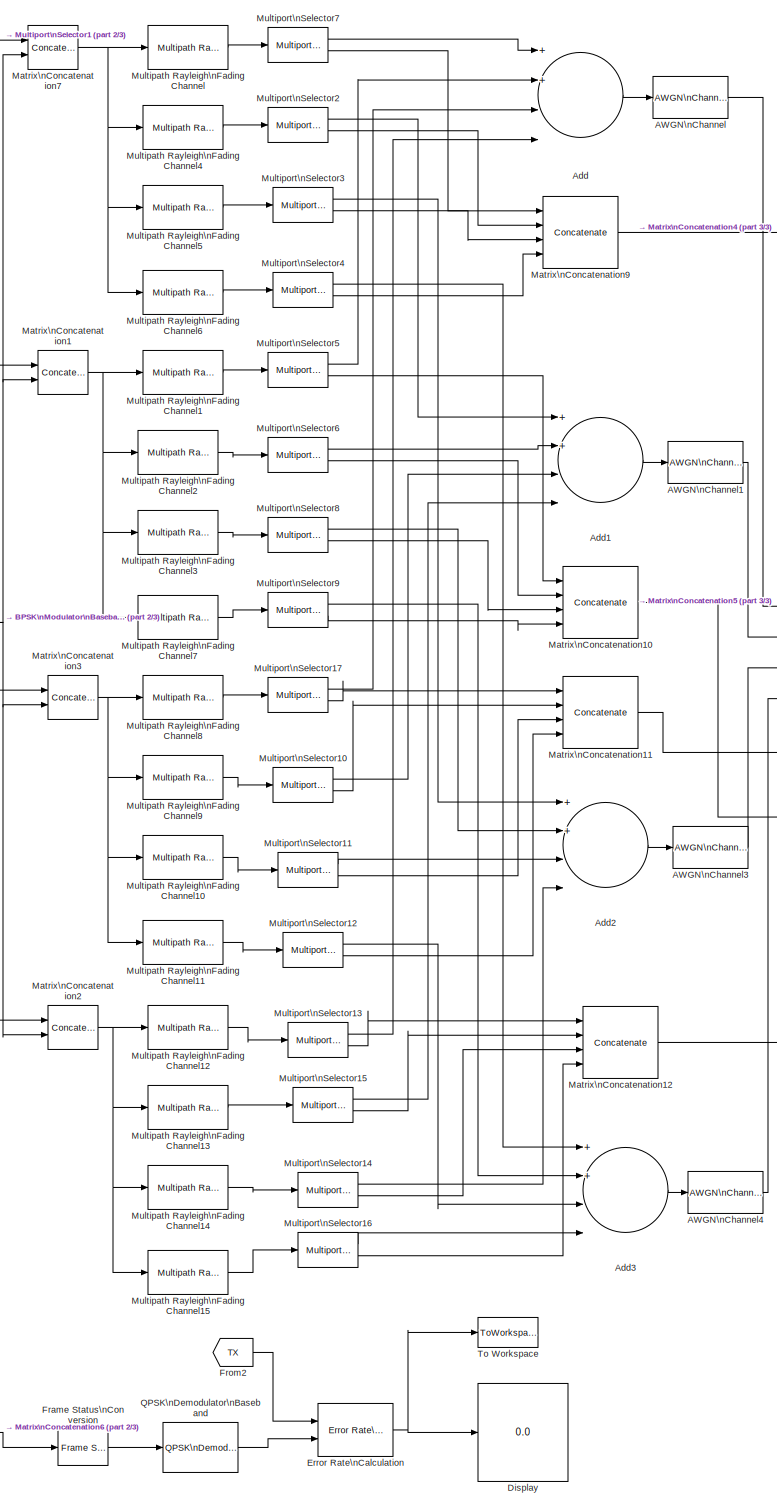
[diagram: root canvas - part 1/3, center side, full height]
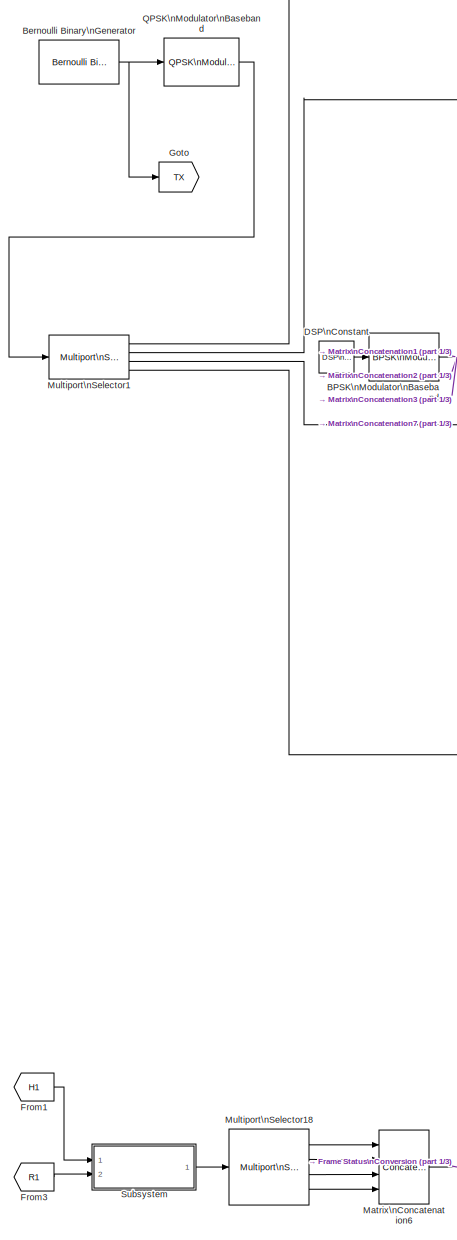
[diagram: root canvas - part 2/3, left side, full height]
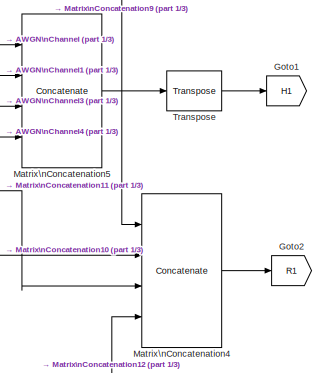
[diagram: root canvas - part 3/3, middle right region]
MODEL mimo
KIND model
BLOCK [Reference] AWGN\nChannel  REF=commchan3/AWGN\nChannel
  EbNodB = 20
  EsNodB = 10
  FunctionWithSeparateData = off
  Ports = [1, 1]
  Ps = 1
  RTWMemSecDataConstants = Inherit from model
  RTWMemSecDataInternal = Inherit from model
  RTWMemSecDataParameters = Inherit from model
  RTWMemSecFuncExecute = Inherit from model
  RTWMemSecFuncInitTerm = Inherit from model
  SNRdB = 0
  ShowPortLabels = FromPortIcon
  SourceBlock = commchan3/AWGN\nChannel
  SourceType = AWGN Channel
  SystemSampleTime = -1
  Tsym = 1e-3/3
  bitsPerSym = 1
  noiseMode = Signal to noise ratio  (SNR)
  seed = 67
  variance = 1
BLOCK [Reference] AWGN\nChannel1  REF=commchan3/AWGN\nChannel
  EbNodB = 20
  EsNodB = 10
  FunctionWithSeparateData = off
  Ports = [1, 1]
  Ps = 1
  RTWMemSecDataConstants = Inherit from model
  RTWMemSecDataInternal = Inherit from model
  RTWMemSecDataParameters = Inherit from model
  RTWMemSecFuncExecute = Inherit from model
  RTWMemSecFuncInitTerm = Inherit from model
  SNRdB = 0
  ShowPortLabels = FromPortIcon
  SourceBlock = commchan3/AWGN\nChannel
  SourceType = AWGN Channel
  SystemSampleTime = -1
  Tsym = 1e-3/3
  bitsPerSym = 1
  noiseMode = Signal to noise ratio  (SNR)
  seed = 68
  variance = 1
BLOCK [Reference] AWGN\nChannel3  REF=commchan3/AWGN\nChannel
  EbNodB = 20
  EsNodB = 10
  FunctionWithSeparateData = off
  Ports = [1, 1]
  Ps = 1
  RTWMemSecDataConstants = Inherit from model
  RTWMemSecDataInternal = Inherit from model
  RTWMemSecDataParameters = Inherit from model
  RTWMemSecFuncExecute = Inherit from model
  RTWMemSecFuncInitTerm = Inherit from model
  SNRdB = 0
  ShowPortLabels = FromPortIcon
  SourceBlock = commchan3/AWGN\nChannel
  SourceType = AWGN Channel
  SystemSampleTime = -1
  Tsym = 1e-3/3
  bitsPerSym = 1
  noiseMode = Signal to noise ratio  (SNR)
  seed = 69
  variance = 1
BLOCK [Reference] AWGN\nChannel4  REF=commchan3/AWGN\nChannel
  EbNodB = 20
  EsNodB = 10
  FunctionWithSeparateData = off
  Ports = [1, 1]
  Ps = 1
  RTWMemSecDataConstants = Inherit from model
  RTWMemSecDataInternal = Inherit from model
  RTWMemSecDataParameters = Inherit from model
  RTWMemSecFuncExecute = Inherit from model
  RTWMemSecFuncInitTerm = Inherit from model
  SNRdB = 0
  ShowPortLabels = FromPortIcon
  SourceBlock = commchan3/AWGN\nChannel
  SourceType = AWGN Channel
  SystemSampleTime = -1
  Tsym = 1e-3/3
  bitsPerSym = 1
  noiseMode = Signal to noise ratio  (SNR)
  seed = 70
  variance = 1
BLOCK [Sum] Add
  InputSameDT = off
  Inputs = 4
  OutDataTypeMode = Inherit via internal rule
  OutScaling = 2^-10
  Ports = [4, 1]
  SaturateOnIntegerOverflow = off
BLOCK [Sum] Add1
  InputSameDT = off
  Inputs = 4
  OutDataTypeMode = Inherit via internal rule
  OutScaling = 2^-10
  Ports = [4, 1]
  SaturateOnIntegerOverflow = off
BLOCK [Sum] Add2
  InputSameDT = off
  Inputs = 4
  OutDataTypeMode = Inherit via internal rule
  OutScaling = 2^-10
  Ports = [4, 1]
  SaturateOnIntegerOverflow = off
BLOCK [Sum] Add3
  InputSameDT = off
  Inputs = 4
  OutDataTypeMode = Inherit via internal rule
  OutScaling = 2^-10
  Ports = [4, 1]
  SaturateOnIntegerOverflow = off
BLOCK [Reference] BPSK\nModulator\nBaseband  REF=commdigbbndpm2/BPSK\nModulator\nBaseband
  FunctionWithSeparateData = off
  Ph = 0
  Ports = [1, 1]
  RTWMemSecDataConstants = Inherit from model
  RTWMemSecDataInternal = Inherit from model
  RTWMemSecDataParameters = Inherit from model
  RTWMemSecFuncExecute = Inherit from model
  RTWMemSecFuncInitTerm = Inherit from model
  ShowPortLabels = FromPortIcon
  SourceBlock = commdigbbndpm2/BPSK\nModulator\nBaseband
  SourceType = BPSK Modulator Baseband
  SystemSampleTime = -1
  numSamp = 1
BLOCK [Reference] Bernoulli Binary\nGenerator  REF=commrandsrc2/Bernoulli Binary\nGenerator
  DialogController = commDDGCreate
  DialogControllerArgs = DataTag0
  FunctionWithSeparateData = off
  P = 0.5
  Ports = [0, 1]
  RTWMemSecDataConstants = Inherit from model
  RTWMemSecDataInternal = Inherit from model
  RTWMemSecDataParameters = Inherit from model
  RTWMemSecFuncExecute = Inherit from model
  RTWMemSecFuncInitTerm = Inherit from model
  ShowPortLabels = FromPortIcon
  SourceBlock = commrandsrc2/Bernoulli Binary\nGenerator
  SourceType = Bernoulli Binary Generator
  SystemSampleTime = -1
  Ts = 1e-6/16/2
  frameBased = on
  orient = off
  outDataType = double
  sampPerFrame = 32
  seed = 61
BLOCK [Reference] DSP\nConstant  REF=dspsrcs4/DSP\nConstant
  FramebasedOutput = -inf
  FunctionWithSeparateData = off
  InterpretAs1D = -inf
  Ports = [0, 1]
  RTWMemSecDataConstants = Inherit from model
  RTWMemSecDataInternal = Inherit from model
  RTWMemSecDataParameters = Inherit from model
  RTWMemSecFuncExecute = Inherit from model
  RTWMemSecFuncInitTerm = Inherit from model
  SampleMode = Discrete
  ShowPortLabels = FromPortIcon
  SourceBlock = dspsrcs4/DSP\nConstant
  SourceType = DSP Constant
  SystemSampleTime = -1
  Ts = -inf
  Value = 0
  additionalParams = off
  allowOverrides = on
  continuousOutput = Sample-based
  dataType = Inherit from 'Constant value'
  discreteOutput = Frame-based
  fracBitsMode = Best precision
  framePeriod = 1e-6
  isSigned = on
  numFracBits = 15
  sampTime = 1e-3/64
  udDataType = sfix(16)
  wordLen = 16
BLOCK [Display] Display
  Decimation = 1
  Lockdown = off
  Ports = [1]
BLOCK [Reference] Error Rate\nCalculation  REF=commsink2/Error Rate\nCalculation
  N = 0
  PMode = Port
  Ports = [2, 1]
  RsMode2 = off
  SourceBlock = commsink2/Error Rate\nCalculation
  SourceType = Error Rate Calculation
  WsName = ErrorVec
  cp_mode = Entire frame
  maxBits = 1e6
  numErr = 1e6
  st_delay = 0
  stop = on
  subframe = []
BLOCK [Reference] Frame Status\nConversion  REF=dspobslib/Frame Status\nConversion
  FunctionWithSeparateData = off
  Ports = [1, 1]
  RTWMemSecDataConstants = Inherit from model
  RTWMemSecDataInternal = Inherit from model
  RTWMemSecDataParameters = Inherit from model
  RTWMemSecFuncExecute = Inherit from model
  RTWMemSecFuncInitTerm = Inherit from model
  ShowPortLabels = none
  SourceBlock = dspobslib/Frame Status\nConversion
  SourceType = Frame Status Conversion
  SystemSampleTime = -1
  growRefPort = off
  outframe = Frame-based
BLOCK [From] From1
  CloseFcn = tagdialog Close
  GotoTag = H1
BLOCK [From] From2
  CloseFcn = tagdialog Close
  GotoTag = TX
BLOCK [From] From3
  CloseFcn = tagdialog Close
  GotoTag = R1
BLOCK [Goto] Goto
  GotoTag = TX
  TagVisibility = local
BLOCK [Goto] Goto1
  GotoTag = H1
  TagVisibility = local
BLOCK [Goto] Goto2
  GotoTag = R1
  TagVisibility = local
BLOCK [Concatenate] Matrix\nConcatenation1
  Mode = Multidimensional array
  Ports = [2, 1]
BLOCK [Concatenate] Matrix\nConcatenation10
  Mode = Multidimensional array
  NumInputs = 4
  Ports = [4, 1]
BLOCK [Concatenate] Matrix\nConcatenation11
  Mode = Multidimensional array
  NumInputs = 4
  Ports = [4, 1]
BLOCK [Concatenate] Matrix\nConcatenation12
  Mode = Multidimensional array
  NumInputs = 4
  Ports = [4, 1]
BLOCK [Concatenate] Matrix\nConcatenation2
  Mode = Multidimensional array
  Ports = [2, 1]
BLOCK [Concatenate] Matrix\nConcatenation3
  Mode = Multidimensional array
  Ports = [2, 1]
BLOCK [Concatenate] Matrix\nConcatenation4
  ConcatenateDimension = 2
  Mode = Multidimensional array
  NumInputs = 4
  Ports = [4, 1]
BLOCK [Concatenate] Matrix\nConcatenation5
  ConcatenateDimension = 2
  Mode = Multidimensional array
  NumInputs = 4
  Ports = [4, 1]
BLOCK [Concatenate] Matrix\nConcatenation6
  Mode = Multidimensional array
  NumInputs = 4
  Ports = [4, 1]
BLOCK [Concatenate] Matrix\nConcatenation7
  Mode = Multidimensional array
  Ports = [2, 1]
BLOCK [Concatenate] Matrix\nConcatenation9
  Mode = Multidimensional array
  NumInputs = 4
  Ports = [4, 1]
BLOCK [Reference] Multipath Rayleigh\nFading Channel  REF=commchan2/Multipath Rayleigh\nFading Channel
  Fd = 100
  FunctionWithSeparateData = off
  Ports = [1, 1]
  RTWMemSecDataConstants = Inherit from model
  RTWMemSecDataInternal = Inherit from model
  RTWMemSecDataParameters = Inherit from model
  RTWMemSecFuncExecute = Inherit from model
  RTWMemSecFuncInitTerm = Inherit from model
  Seed = 71
  ShowPortLabels = FromPortIcon
  SourceBlock = commchan2/Multipath Rayleigh\nFading Channel
  SourceType = Multipath Rayleigh Fading Channel
  SystemSampleTime = -1
  delayVec = [0]
  gainVecdB = [0]
  normGain = on
  simTs = 1e-6/5
BLOCK [Reference] Multipath Rayleigh\nFading Channel1  REF=commchan2/Multipath Rayleigh\nFading Channel
  Fd = 100
  FunctionWithSeparateData = off
  Ports = [1, 1]
  RTWMemSecDataConstants = Inherit from model
  RTWMemSecDataInternal = Inherit from model
  RTWMemSecDataParameters = Inherit from model
  RTWMemSecFuncExecute = Inherit from model
  RTWMemSecFuncInitTerm = Inherit from model
  Seed = 75
  ShowPortLabels = FromPortIcon
  SourceBlock = commchan2/Multipath Rayleigh\nFading Channel
  SourceType = Multipath Rayleigh Fading Channel
  SystemSampleTime = -1
  delayVec = [0]
  gainVecdB = [0]
  normGain = on
  simTs = 1e-6/5
BLOCK [Reference] Multipath Rayleigh\nFading Channel10  REF=commchan2/Multipath Rayleigh\nFading Channel
  Fd = 100
  FunctionWithSeparateData = off
  Ports = [1, 1]
  RTWMemSecDataConstants = Inherit from model
  RTWMemSecDataInternal = Inherit from model
  RTWMemSecDataParameters = Inherit from model
  RTWMemSecFuncExecute = Inherit from model
  RTWMemSecFuncInitTerm = Inherit from model
  Seed = 81
  ShowPortLabels = FromPortIcon
  SourceBlock = commchan2/Multipath Rayleigh\nFading Channel
  SourceType = Multipath Rayleigh Fading Channel
  SystemSampleTime = -1
  delayVec = [0]
  gainVecdB = [0]
  normGain = on
  simTs = 1e-6/5
BLOCK [Reference] Multipath Rayleigh\nFading Channel11  REF=commchan2/Multipath Rayleigh\nFading Channel
  Fd = 100
  FunctionWithSeparateData = off
  Ports = [1, 1]
  RTWMemSecDataConstants = Inherit from model
  RTWMemSecDataInternal = Inherit from model
  RTWMemSecDataParameters = Inherit from model
  RTWMemSecFuncExecute = Inherit from model
  RTWMemSecFuncInitTerm = Inherit from model
  Seed = 82
  ShowPortLabels = FromPortIcon
  SourceBlock = commchan2/Multipath Rayleigh\nFading Channel
  SourceType = Multipath Rayleigh Fading Channel
  SystemSampleTime = -1
  delayVec = [0]
  gainVecdB = [0]
  normGain = on
  simTs = 1e-6/5
BLOCK [Reference] Multipath Rayleigh\nFading Channel12  REF=commchan2/Multipath Rayleigh\nFading Channel
  Fd = 100
  FunctionWithSeparateData = off
  Ports = [1, 1]
  RTWMemSecDataConstants = Inherit from model
  RTWMemSecDataInternal = Inherit from model
  RTWMemSecDataParameters = Inherit from model
  RTWMemSecFuncExecute = Inherit from model
  RTWMemSecFuncInitTerm = Inherit from model
  Seed = 83
  ShowPortLabels = FromPortIcon
  SourceBlock = commchan2/Multipath Rayleigh\nFading Channel
  SourceType = Multipath Rayleigh Fading Channel
  SystemSampleTime = -1
  delayVec = [0]
  gainVecdB = [0]
  normGain = on
  simTs = 1e-6/5
BLOCK [Reference] Multipath Rayleigh\nFading Channel13  REF=commchan2/Multipath Rayleigh\nFading Channel
  Fd = 100
  FunctionWithSeparateData = off
  Ports = [1, 1]
  RTWMemSecDataConstants = Inherit from model
  RTWMemSecDataInternal = Inherit from model
  RTWMemSecDataParameters = Inherit from model
  RTWMemSecFuncExecute = Inherit from model
  RTWMemSecFuncInitTerm = Inherit from model
  Seed = 84
  ShowPortLabels = FromPortIcon
  SourceBlock = commchan2/Multipath Rayleigh\nFading Channel
  SourceType = Multipath Rayleigh Fading Channel
  SystemSampleTime = -1
  delayVec = [0]
  gainVecdB = [0]
  normGain = on
  simTs = 1e-6/5
BLOCK [Reference] Multipath Rayleigh\nFading Channel14  REF=commchan2/Multipath Rayleigh\nFading Channel
  Fd = 100
  FunctionWithSeparateData = off
  Ports = [1, 1]
  RTWMemSecDataConstants = Inherit from model
  RTWMemSecDataInternal = Inherit from model
  RTWMemSecDataParameters = Inherit from model
  RTWMemSecFuncExecute = Inherit from model
  RTWMemSecFuncInitTerm = Inherit from model
  Seed = 85
  ShowPortLabels = FromPortIcon
  SourceBlock = commchan2/Multipath Rayleigh\nFading Channel
  SourceType = Multipath Rayleigh Fading Channel
  SystemSampleTime = -1
  delayVec = [0]
  gainVecdB = [0]
  normGain = on
  simTs = 1e-6/5
BLOCK [Reference] Multipath Rayleigh\nFading Channel15  REF=commchan2/Multipath Rayleigh\nFading Channel
  Fd = 100
  FunctionWithSeparateData = off
  Ports = [1, 1]
  RTWMemSecDataConstants = Inherit from model
  RTWMemSecDataInternal = Inherit from model
  RTWMemSecDataParameters = Inherit from model
  RTWMemSecFuncExecute = Inherit from model
  RTWMemSecFuncInitTerm = Inherit from model
  Seed = 86
  ShowPortLabels = FromPortIcon
  SourceBlock = commchan2/Multipath Rayleigh\nFading Channel
  SourceType = Multipath Rayleigh Fading Channel
  SystemSampleTime = -1
  delayVec = [0]
  gainVecdB = [0]
  normGain = on
  simTs = 1e-6/5
BLOCK [Reference] Multipath Rayleigh\nFading Channel2  REF=commchan2/Multipath Rayleigh\nFading Channel
  Fd = 100
  FunctionWithSeparateData = off
  Ports = [1, 1]
  RTWMemSecDataConstants = Inherit from model
  RTWMemSecDataInternal = Inherit from model
  RTWMemSecDataParameters = Inherit from model
  RTWMemSecFuncExecute = Inherit from model
  RTWMemSecFuncInitTerm = Inherit from model
  Seed = 76
  ShowPortLabels = FromPortIcon
  SourceBlock = commchan2/Multipath Rayleigh\nFading Channel
  SourceType = Multipath Rayleigh Fading Channel
  SystemSampleTime = -1
  delayVec = [0]
  gainVecdB = [0]
  normGain = on
  simTs = 1e-6/5
BLOCK [Reference] Multipath Rayleigh\nFading Channel3  REF=commchan2/Multipath Rayleigh\nFading Channel
  Fd = 100
  FunctionWithSeparateData = off
  Ports = [1, 1]
  RTWMemSecDataConstants = Inherit from model
  RTWMemSecDataInternal = Inherit from model
  RTWMemSecDataParameters = Inherit from model
  RTWMemSecFuncExecute = Inherit from model
  RTWMemSecFuncInitTerm = Inherit from model
  Seed = 77
  ShowPortLabels = FromPortIcon
  SourceBlock = commchan2/Multipath Rayleigh\nFading Channel
  SourceType = Multipath Rayleigh Fading Channel
  SystemSampleTime = -1
  delayVec = [0]
  gainVecdB = [0]
  normGain = on
  simTs = 1e-6/5
BLOCK [Reference] Multipath Rayleigh\nFading Channel4  REF=commchan2/Multipath Rayleigh\nFading Channel
  Fd = 100
  FunctionWithSeparateData = off
  Ports = [1, 1]
  RTWMemSecDataConstants = Inherit from model
  RTWMemSecDataInternal = Inherit from model
  RTWMemSecDataParameters = Inherit from model
  RTWMemSecFuncExecute = Inherit from model
  RTWMemSecFuncInitTerm = Inherit from model
  Seed = 72
  ShowPortLabels = FromPortIcon
  SourceBlock = commchan2/Multipath Rayleigh\nFading Channel
  SourceType = Multipath Rayleigh Fading Channel
  SystemSampleTime = -1
  delayVec = [0]
  gainVecdB = [0]
  normGain = on
  simTs = 1e-6/5
BLOCK [Reference] Multipath Rayleigh\nFading Channel5  REF=commchan2/Multipath Rayleigh\nFading Channel
  Fd = 100
  FunctionWithSeparateData = off
  Ports = [1, 1]
  RTWMemSecDataConstants = Inherit from model
  RTWMemSecDataInternal = Inherit from model
  RTWMemSecDataParameters = Inherit from model
  RTWMemSecFuncExecute = Inherit from model
  RTWMemSecFuncInitTerm = Inherit from model
  Seed = 73
  ShowPortLabels = FromPortIcon
  SourceBlock = commchan2/Multipath Rayleigh\nFading Channel
  SourceType = Multipath Rayleigh Fading Channel
  SystemSampleTime = -1
  delayVec = [0 ]
  gainVecdB = [0 ]
  normGain = on
  simTs = 1e-6/5
BLOCK [Reference] Multipath Rayleigh\nFading Channel6  REF=commchan2/Multipath Rayleigh\nFading Channel
  Fd = 100
  FunctionWithSeparateData = off
  Ports = [1, 1]
  RTWMemSecDataConstants = Inherit from model
  RTWMemSecDataInternal = Inherit from model
  RTWMemSecDataParameters = Inherit from model
  RTWMemSecFuncExecute = Inherit from model
  RTWMemSecFuncInitTerm = Inherit from model
  Seed = 74
  ShowPortLabels = FromPortIcon
  SourceBlock = commchan2/Multipath Rayleigh\nFading Channel
  SourceType = Multipath Rayleigh Fading Channel
  SystemSampleTime = -1
  delayVec = [0 ]
  gainVecdB = [0 ]
  normGain = on
  simTs = 1e-6/5
BLOCK [Reference] Multipath Rayleigh\nFading Channel7  REF=commchan2/Multipath Rayleigh\nFading Channel
  Fd = 100
  FunctionWithSeparateData = off
  Ports = [1, 1]
  RTWMemSecDataConstants = Inherit from model
  RTWMemSecDataInternal = Inherit from model
  RTWMemSecDataParameters = Inherit from model
  RTWMemSecFuncExecute = Inherit from model
  RTWMemSecFuncInitTerm = Inherit from model
  Seed = 78
  ShowPortLabels = FromPortIcon
  SourceBlock = commchan2/Multipath Rayleigh\nFading Channel
  SourceType = Multipath Rayleigh Fading Channel
  SystemSampleTime = -1
  delayVec = [0]
  gainVecdB = [0]
  normGain = on
  simTs = 1e-6/5
BLOCK [Reference] Multipath Rayleigh\nFading Channel8  REF=commchan2/Multipath Rayleigh\nFading Channel
  Fd = 100
  FunctionWithSeparateData = off
  Ports = [1, 1]
  RTWMemSecDataConstants = Inherit from model
  RTWMemSecDataInternal = Inherit from model
  RTWMemSecDataParameters = Inherit from model
  RTWMemSecFuncExecute = Inherit from model
  RTWMemSecFuncInitTerm = Inherit from model
  Seed = 79
  ShowPortLabels = FromPortIcon
  SourceBlock = commchan2/Multipath Rayleigh\nFading Channel
  SourceType = Multipath Rayleigh Fading Channel
  SystemSampleTime = -1
  delayVec = [0]
  gainVecdB = [0]
  normGain = on
  simTs = 1e-6/5
BLOCK [Reference] Multipath Rayleigh\nFading Channel9  REF=commchan2/Multipath Rayleigh\nFading Channel
  Fd = 100
  FunctionWithSeparateData = off
  Ports = [1, 1]
  RTWMemSecDataConstants = Inherit from model
  RTWMemSecDataInternal = Inherit from model
  RTWMemSecDataParameters = Inherit from model
  RTWMemSecFuncExecute = Inherit from model
  RTWMemSecFuncInitTerm = Inherit from model
  Seed = 80
  ShowPortLabels = FromPortIcon
  SourceBlock = commchan2/Multipath Rayleigh\nFading Channel
  SourceType = Multipath Rayleigh Fading Channel
  SystemSampleTime = -1
  delayVec = [0]
  gainVecdB = [0]
  normGain = on
  simTs = 1e-6/5
BLOCK [Reference] Multiport\nSelector1  REF=dspindex/Multiport\nSelector
  Ports = [1, 4]
  SourceBlock = dspindex/Multiport\nSelector
  SourceType = Multiport Selector
  idxCellArray = { [1 5 9 13],[2 6 10 14],[3 7 11 15],[4 8 12 16] }
  idxErrMode = Clip Index
  rowsOrCols = Rows
BLOCK [Reference] Multiport\nSelector10  REF=dspindex/Multiport\nSelector
  Ports = [1, 2]
  SourceBlock = dspindex/Multiport\nSelector
  SourceType = Multiport Selector
  idxCellArray = { [1:1:4],5 }
  idxErrMode = Clip Index
  rowsOrCols = Rows
BLOCK [Reference] Multiport\nSelector11  REF=dspindex/Multiport\nSelector
  Ports = [1, 2]
  SourceBlock = dspindex/Multiport\nSelector
  SourceType = Multiport Selector
  idxCellArray = { [1:1:4],5 }
  idxErrMode = Clip Index
  rowsOrCols = Rows
BLOCK [Reference] Multiport\nSelector12  REF=dspindex/Multiport\nSelector
  Ports = [1, 2]
  SourceBlock = dspindex/Multiport\nSelector
  SourceType = Multiport Selector
  idxCellArray = { [1:1:4],5 }
  idxErrMode = Clip Index
  rowsOrCols = Rows
BLOCK [Reference] Multiport\nSelector13  REF=dspindex/Multiport\nSelector
  Ports = [1, 2]
  SourceBlock = dspindex/Multiport\nSelector
  SourceType = Multiport Selector
  idxCellArray = { [1:1:4],5 }
  idxErrMode = Clip Index
  rowsOrCols = Rows
BLOCK [Reference] Multiport\nSelector14  REF=dspindex/Multiport\nSelector
  Ports = [1, 2]
  SourceBlock = dspindex/Multiport\nSelector
  SourceType = Multiport Selector
  idxCellArray = { [1:1:4],5 }
  idxErrMode = Clip Index
  rowsOrCols = Rows
BLOCK [Reference] Multiport\nSelector15  REF=dspindex/Multiport\nSelector
  Ports = [1, 2]
  SourceBlock = dspindex/Multiport\nSelector
  SourceType = Multiport Selector
  idxCellArray = { [1:1:4],5 }
  idxErrMode = Clip Index
  rowsOrCols = Rows
BLOCK [Reference] Multiport\nSelector16  REF=dspindex/Multiport\nSelector
  Ports = [1, 2]
  SourceBlock = dspindex/Multiport\nSelector
  SourceType = Multiport Selector
  idxCellArray = { [1:1:4],5 }
  idxErrMode = Clip Index
  rowsOrCols = Rows
BLOCK [Reference] Multiport\nSelector17  REF=dspindex/Multiport\nSelector
  Ports = [1, 2]
  SourceBlock = dspindex/Multiport\nSelector
  SourceType = Multiport Selector
  idxCellArray = { [1:1:4],5 }
  idxErrMode = Clip Index
  rowsOrCols = Rows
BLOCK [Reference] Multiport\nSelector18  REF=dspindex/Multiport\nSelector
  Ports = [1, 4]
  SourceBlock = dspindex/Multiport\nSelector
  SourceType = Multiport Selector
  idxCellArray = { [1],[2],[3],[4] }
  idxErrMode = Clip Index
  rowsOrCols = Columns
BLOCK [Reference] Multiport\nSelector2  REF=dspindex/Multiport\nSelector
  Ports = [1, 2]
  SourceBlock = dspindex/Multiport\nSelector
  SourceType = Multiport Selector
  idxCellArray = { [1:1:4],5 }
  idxErrMode = Clip Index
  rowsOrCols = Rows
BLOCK [Reference] Multiport\nSelector3  REF=dspindex/Multiport\nSelector
  Ports = [1, 2]
  SourceBlock = dspindex/Multiport\nSelector
  SourceType = Multiport Selector
  idxCellArray = { [1:1:4],5 }
  idxErrMode = Clip Index
  rowsOrCols = Rows
BLOCK [Reference] Multiport\nSelector4  REF=dspindex/Multiport\nSelector
  Ports = [1, 2]
  SourceBlock = dspindex/Multiport\nSelector
  SourceType = Multiport Selector
  idxCellArray = { [1:1:4],5 }
  idxErrMode = Clip Index
  rowsOrCols = Rows
BLOCK [Reference] Multiport\nSelector5  REF=dspindex/Multiport\nSelector
  Ports = [1, 2]
  SourceBlock = dspindex/Multiport\nSelector
  SourceType = Multiport Selector
  idxCellArray = { [1:1:4],5 }
  idxErrMode = Clip Index
  rowsOrCols = Rows
BLOCK [Reference] Multiport\nSelector6  REF=dspindex/Multiport\nSelector
  Ports = [1, 2]
  SourceBlock = dspindex/Multiport\nSelector
  SourceType = Multiport Selector
  idxCellArray = { [1:1:4],5 }
  idxErrMode = Clip Index
  rowsOrCols = Rows
BLOCK [Reference] Multiport\nSelector7  REF=dspindex/Multiport\nSelector
  Ports = [1, 2]
  SourceBlock = dspindex/Multiport\nSelector
  SourceType = Multiport Selector
  idxCellArray = { [1:1:4],5 }
  idxErrMode = Clip Index
  rowsOrCols = Rows
BLOCK [Reference] Multiport\nSelector8  REF=dspindex/Multiport\nSelector
  Ports = [1, 2]
  SourceBlock = dspindex/Multiport\nSelector
  SourceType = Multiport Selector
  idxCellArray = { [1:1:4],5 }
  idxErrMode = Clip Index
  rowsOrCols = Rows
BLOCK [Reference] Multiport\nSelector9  REF=dspindex/Multiport\nSelector
  Ports = [1, 2]
  SourceBlock = dspindex/Multiport\nSelector
  SourceType = Multiport Selector
  idxCellArray = { [1:1:4],5 }
  idxErrMode = Clip Index
  rowsOrCols = Rows
BLOCK [Reference] QPSK\nDemodulator\nBaseband  REF=commdigbbndpm2/QPSK\nDemodulator\nBaseband
  Dec = Binary
  FunctionWithSeparateData = off
  OutType = Bit
  Ph = pi/4
  Ports = [1, 1]
  RTWMemSecDataConstants = Inherit from model
  RTWMemSecDataInternal = Inherit from model
  RTWMemSecDataParameters = Inherit from model
  RTWMemSecFuncExecute = Inherit from model
  RTWMemSecFuncInitTerm = Inherit from model
  ShowPortLabels = FromPortIcon
  SourceBlock = commdigbbndpm2/QPSK\nDemodulator\nBaseband
  SourceType = QPSK Demodulator Baseband
  SystemSampleTime = -1
  numSamp = 1
BLOCK [Reference] QPSK\nModulator\nBaseband  REF=commdigbbndpm2/QPSK\nModulator\nBaseband
  Enc = Binary
  FunctionWithSeparateData = off
  InType = Bit
  Ph = pi/4
  Ports = [1, 1]
  RTWMemSecDataConstants = Inherit from model
  RTWMemSecDataInternal = Inherit from model
  RTWMemSecDataParameters = Inherit from model
  RTWMemSecFuncExecute = Inherit from model
  RTWMemSecFuncInitTerm = Inherit from model
  ShowPortLabels = FromPortIcon
  SourceBlock = commdigbbndpm2/QPSK\nModulator\nBaseband
  SourceType = QPSK Modulator Baseband
  SystemSampleTime = -1
  numSamp = 1
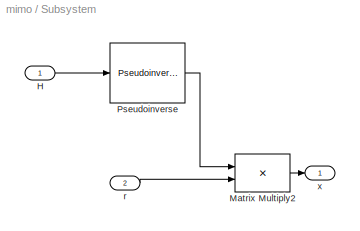
BLOCK [SubSystem] Subsystem
  FunctionWithSeparateData = off
  MaskHideContents = off
  MinAlgLoopOccurrences = off
  Ports = [2, 1]
  RTWSystemCode = Auto
BLOCK [Inport] Subsystem/H
  IconDisplay = Port number
BLOCK [Product] Subsystem/Matrix Multiply2
  InputSameDT = off
  Multiplication = Matrix(*)
  OutDataTypeMode = Inherit via internal rule
  Ports = [2, 1]
  RndMeth = Floor
  SaturateOnIntegerOverflow = off
BLOCK [Reference] Subsystem/Pseudoinverse  REF=dspinverses/Pseudoinverse
  Ports = [1, 1]
  SourceBlock = dspinverses/Pseudoinverse
  SourceType = Pseudoinverse
  wanterr = off
BLOCK [Inport] Subsystem/r
  IconDisplay = Port number
  Port = 2
BLOCK [Outport] Subsystem/x
  BusOutputAsStruct = off
  IconDisplay = Port number
BLOCK [ToWorkspace] To Workspace
  MaxDataPoints = 1
  SampleTime = -1
  SaveFormat = Array
  VariableName = binBER
BLOCK [Reference] Transpose  REF=dspmtrx3/Transpose
  FunctionWithSeparateData = off
  Hermitian = off
  Ports = [1, 1]
  RTWMemSecDataConstants = Inherit from model
  RTWMemSecDataInternal = Inherit from model
  RTWMemSecDataParameters = Inherit from model
  RTWMemSecFuncExecute = Inherit from model
  RTWMemSecFuncInitTerm = Inherit from model
  ShowPortLabels = FromPortIcon
  SourceBlock = dspmtrx3/Transpose
  SourceType = Transpose
  SystemSampleTime = -1
  overflowFlag = off
LINE AWGN\nChannel1:1 -> Matrix\nConcatenation5:2
LINE AWGN\nChannel3:1 -> Matrix\nConcatenation5:3
LINE AWGN\nChannel4:1 -> Matrix\nConcatenation5:4
LINE AWGN\nChannel:1 -> Matrix\nConcatenation5:1
LINE Add1:1 -> AWGN\nChannel1:1
LINE Add2:1 -> AWGN\nChannel3:1
LINE Add3:1 -> AWGN\nChannel4:1
LINE Add:1 -> AWGN\nChannel:1
NET BPSK\nModulator\nBaseband:1 -> Matrix\nConcatenation1:2, Matrix\nConcatenation2:2, Matrix\nConcatenation3:2, Matrix\nConcatenation7:2
NET Bernoulli Binary\nGenerator:1 -> Goto:1, QPSK\nModulator\nBaseband:1
LINE DSP\nConstant:1 -> BPSK\nModulator\nBaseband:1
NET Error Rate\nCalculation:1 -> Display:1, To Workspace:1
LINE Frame Status\nConversion:1 -> QPSK\nDemodulator\nBaseband:1
LINE From1:1 -> Subsystem:1
LINE From2:1 -> Error Rate\nCalculation:1
LINE From3:1 -> Subsystem:2
LINE Matrix\nConcatenation10:1 -> Matrix\nConcatenation4:2
LINE Matrix\nConcatenation11:1 -> Matrix\nConcatenation4:3
LINE Matrix\nConcatenation12:1 -> Matrix\nConcatenation4:4
NET Matrix\nConcatenation1:1 -> Multipath Rayleigh\nFading Channel1:1, Multipath Rayleigh\nFading Channel2:1, Multipath Rayleigh\nFading Channel3:1, Multipath Rayleigh\nFading Channel7:1
NET Matrix\nConcatenation2:1 -> Multipath Rayleigh\nFading Channel12:1, Multipath Rayleigh\nFading Channel13:1, Multipath Rayleigh\nFading Channel14:1, Multipath Rayleigh\nFading Channel15:1
NET Matrix\nConcatenation3:1 -> Multipath Rayleigh\nFading Channel10:1, Multipath Rayleigh\nFading Channel11:1, Multipath Rayleigh\nFading Channel8:1, Multipath Rayleigh\nFading Channel9:1
LINE Matrix\nConcatenation4:1 -> Goto2:1
LINE Matrix\nConcatenation5:1 -> Transpose:1
LINE Matrix\nConcatenation6:1 -> Frame Status\nConversion:1
NET Matrix\nConcatenation7:1 -> Multipath Rayleigh\nFading Channel4:1, Multipath Rayleigh\nFading Channel5:1, Multipath Rayleigh\nFading Channel6:1, Multipath Rayleigh\nFading Channel:1
LINE Matrix\nConcatenation9:1 -> Matrix\nConcatenation4:1
LINE Multipath Rayleigh\nFading Channel10:1 -> Multiport\nSelector11:1
LINE Multipath Rayleigh\nFading Channel11:1 -> Multiport\nSelector12:1
LINE Multipath Rayleigh\nFading Channel12:1 -> Multiport\nSelector13:1
LINE Multipath Rayleigh\nFading Channel13:1 -> Multiport\nSelector15:1
LINE Multipath Rayleigh\nFading Channel14:1 -> Multiport\nSelector14:1
LINE Multipath Rayleigh\nFading Channel15:1 -> Multiport\nSelector16:1
LINE Multipath Rayleigh\nFading Channel1:1 -> Multiport\nSelector5:1
LINE Multipath Rayleigh\nFading Channel2:1 -> Multiport\nSelector6:1
LINE Multipath Rayleigh\nFading Channel3:1 -> Multiport\nSelector8:1
LINE Multipath Rayleigh\nFading Channel4:1 -> Multiport\nSelector2:1
LINE Multipath Rayleigh\nFading Channel5:1 -> Multiport\nSelector3:1
LINE Multipath Rayleigh\nFading Channel6:1 -> Multiport\nSelector4:1
LINE Multipath Rayleigh\nFading Channel7:1 -> Multiport\nSelector9:1
LINE Multipath Rayleigh\nFading Channel8:1 -> Multiport\nSelector17:1
LINE Multipath Rayleigh\nFading Channel9:1 -> Multiport\nSelector10:1
LINE Multipath Rayleigh\nFading Channel:1 -> Multiport\nSelector7:1
LINE Multiport\nSelector10:1 -> Add1:3
LINE Multiport\nSelector10:2 -> Matrix\nConcatenation11:2
LINE Multiport\nSelector11:1 -> Add2:3
LINE Multiport\nSelector11:2 -> Matrix\nConcatenation11:3
LINE Multiport\nSelector12:1 -> Add3:3
LINE Multiport\nSelector12:2 -> Matrix\nConcatenation11:4
LINE Multiport\nSelector13:1 -> Add:4
LINE Multiport\nSelector13:2 -> Matrix\nConcatenation12:1
LINE Multiport\nSelector14:1 -> Add2:4
LINE Multiport\nSelector14:2 -> Matrix\nConcatenation12:3
LINE Multiport\nSelector15:1 -> Add1:4
LINE Multiport\nSelector15:2 -> Matrix\nConcatenation12:2
LINE Multiport\nSelector16:1 -> Add3:4
LINE Multiport\nSelector16:2 -> Matrix\nConcatenation12:4
LINE Multiport\nSelector17:1 -> Add:3
LINE Multiport\nSelector17:2 -> Matrix\nConcatenation11:1
LINE Multiport\nSelector18:1 -> Matrix\nConcatenation6:1
LINE Multiport\nSelector18:2 -> Matrix\nConcatenation6:2
LINE Multiport\nSelector18:3 -> Matrix\nConcatenation6:3
LINE Multiport\nSelector18:4 -> Matrix\nConcatenation6:4
LINE Multiport\nSelector1:1 -> Matrix\nConcatenation7:1
LINE Multiport\nSelector1:2 -> Matrix\nConcatenation1:1
LINE Multiport\nSelector1:3 -> Matrix\nConcatenation3:1
LINE Multiport\nSelector1:4 -> Matrix\nConcatenation2:1
LINE Multiport\nSelector2:1 -> Add1:1
LINE Multiport\nSelector2:2 -> Matrix\nConcatenation9:2
LINE Multiport\nSelector3:1 -> Add2:1
LINE Multiport\nSelector3:2 -> Matrix\nConcatenation9:3
LINE Multiport\nSelector4:1 -> Add3:1
LINE Multiport\nSelector4:2 -> Matrix\nConcatenation9:4
LINE Multiport\nSelector5:1 -> Add:2
LINE Multiport\nSelector5:2 -> Matrix\nConcatenation10:1
LINE Multiport\nSelector6:1 -> Add1:2
LINE Multiport\nSelector6:2 -> Matrix\nConcatenation10:2
LINE Multiport\nSelector7:1 -> Add:1
LINE Multiport\nSelector7:2 -> Matrix\nConcatenation9:1
LINE Multiport\nSelector8:1 -> Add2:2
LINE Multiport\nSelector8:2 -> Matrix\nConcatenation10:3
LINE Multiport\nSelector9:1 -> Add3:2
LINE Multiport\nSelector9:2 -> Matrix\nConcatenation10:4
LINE QPSK\nDemodulator\nBaseband:1 -> Error Rate\nCalculation:2
LINE QPSK\nModulator\nBaseband:1 -> Multiport\nSelector1:1
LINE Subsystem/H:1 -> Subsystem/Pseudoinverse:1
LINE Subsystem/Matrix Multiply2:1 -> Subsystem/x:1
LINE Subsystem/Pseudoinverse:1 -> Subsystem/Matrix Multiply2:1
LINE Subsystem/r:1 -> Subsystem/Matrix Multiply2:2
LINE Subsystem:1 -> Multiport\nSelector18:1
LINE Transpose:1 -> Goto1:1
note: NET lines group one-source signal fan-out (src -> all destinations, sorted); 1:1 wires keep LINE
